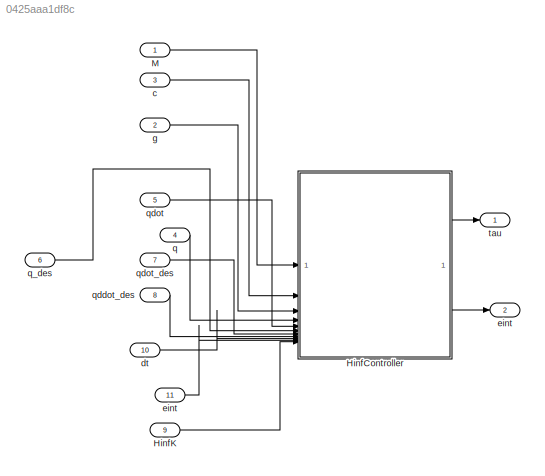
MODEL slx_0425aaa1df8c
KIND model
CONFIG AbsTol = auto
CONFIG EnableMultiTasking = off
CONFIG FixedStep = 0.001
CONFIG MaxStep = auto
CONFIG MinStep = auto
CONFIG RelTol = 1e-3
CONFIG SampleTimeConstraint = Unconstrained
CONFIG SolverName = FixedStepDiscrete
CONFIG StartTime = 0.0
CONFIG StopTime = Inf
WORKSPACE source: mxarray member
WORKSPACE robot: robotics.RigidBodyTree (value not decoded)
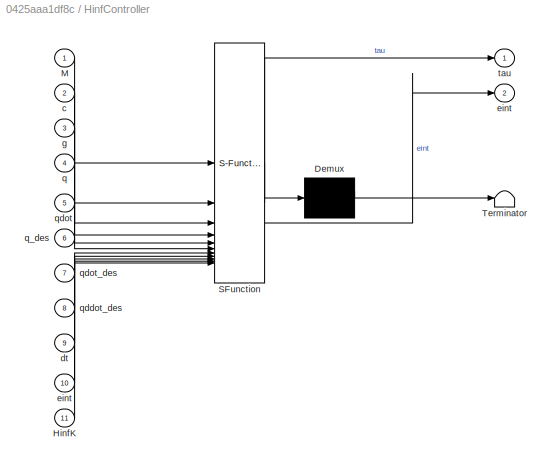
BLOCK [SubSystem] HinfController
  ErrorFcn = Stateflow.Translate.translate
  PermitHierarchicalResolution = ExplicitOnly
  SFBlockType = MATLAB Function
  TreatAsAtomicUnit = on
BLOCK [Demux] HinfController/ Demux 
  Outputs = 1
BLOCK [S-Function] HinfController/ SFunction 
  EnableBusSupport = off
  FunctionName = sf_sfun
  PortCounts = [11 3]
  SFcnIsStateOwnerBlock = off
  SFunctionDeploymentMode = off
  Tag = Stateflow S-Function 2
BLOCK [Terminator] HinfController/ Terminator 
BLOCK [Inport] HinfController/HinfK
  Port = 11
BLOCK [Inport] HinfController/M
BLOCK [Inport] HinfController/c
  Port = 2
BLOCK [Inport] HinfController/dt
  Port = 9
BLOCK [Outport] HinfController/eint
  Port = 2
BLOCK [Inport] HinfController/eint 
  Port = 10
BLOCK [Inport] HinfController/g
  Port = 3
BLOCK [Inport] HinfController/q
  Port = 4
BLOCK [Inport] HinfController/q_des
  Port = 6
BLOCK [Inport] HinfController/qddot_des
  Port = 8
BLOCK [Inport] HinfController/qdot
  Port = 5
BLOCK [Inport] HinfController/qdot_des
  Port = 7
BLOCK [Outport] HinfController/tau
BLOCK [Inport] HinfK
  Port = 9
  PortDimensions = 12
BLOCK [Inport] M
  PortDimensions = [12,12]
BLOCK [Inport] c
  Port = 3
  PortDimensions = 12
BLOCK [Inport] dt
  Port = 10
BLOCK [Outport] eint
  Port = 2
BLOCK [Inport] eint 
  Port = 11
BLOCK [Inport] g
  Port = 2
  PortDimensions = 12
BLOCK [Inport] q
  Port = 4
  PortDimensions = 12
BLOCK [Inport] q_des
  Port = 6
  PortDimensions = 12
BLOCK [Inport] qddot_des
  Port = 8
  PortDimensions = 12
BLOCK [Inport] qdot
  Port = 5
  PortDimensions = 12
BLOCK [Inport] qdot_des
  Port = 7
  PortDimensions = 12
BLOCK [Outport] tau
LINE HinfController:1 -> tau:1
LINE HinfController:2 -> eint:1
LINE HinfK:1 -> HinfController:11
LINE M:1 -> HinfController:1
LINE c:1 -> HinfController:2
LINE dt:1 -> HinfController:9
LINE eint :1 -> HinfController:10
LINE g:1 -> HinfController:3
LINE q:1 -> HinfController:4
LINE q_des:1 -> HinfController:6
LINE qddot_des:1 -> HinfController:8
LINE qdot:1 -> HinfController:5
LINE qdot_des:1 -> HinfController:7
CHART HinfController states=1 transitions=1
  STATE_LABEL 'eML_blk_kernel()'
  STATE_LABEL 'SCRIPT:\nfunction [tau,eint]  = HinfController(M,c,g,q,qdot,q_des,qdot_des,qddot_des,dt,eint,HinfK)\n\ne = q_des-q;\nedot = qdot_des-qdot;\neint = eint+e.*dt;\nqddot_ref =qddot_des+100*e+20*edot;\n\ntau = M*qddot_ref+c+g+diag(HinfK)*(edot+20*e+100*eint);'
CHART  states=0 transitions=0
